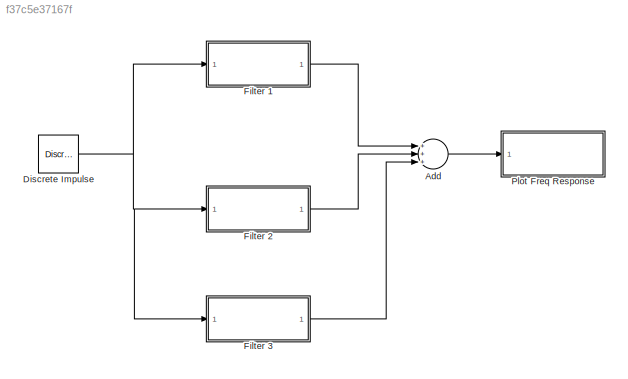
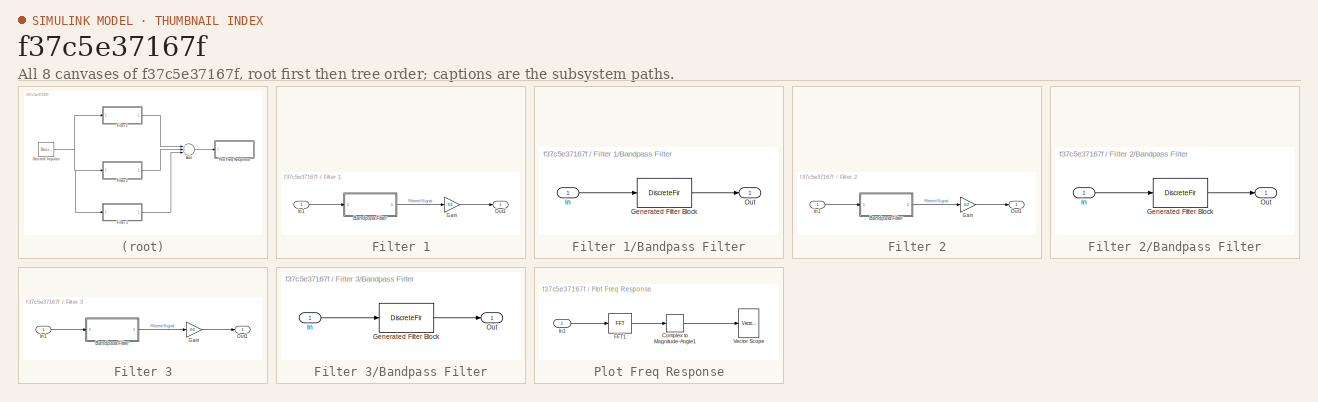
[diagram: thumbnail index - all 8 canvases of the model, root first then tree order]
MODEL slx_f37c5e37167f
KIND model
CONFIG AbsTol = auto
CONFIG EnableMultiTasking = off
CONFIG FixedStep = auto
CONFIG MaxStep = auto
CONFIG MinStep = auto
CONFIG RelTol = 1e-3
CONFIG SampleTimeConstraint = Unconstrained
CONFIG Solver = VariableStepAuto
CONFIG SolverName = VariableStepAuto
CONFIG StartTime = 0.0
CONFIG StopTime = 0.001
BLOCK [Sum] Add
  InputSameDT = off
  Inputs = +++
  OutDataTypeStr = Inherit: Inherit via internal rule
  Ports = [3, 1]
  SaturateOnIntegerOverflow = off
BLOCK [Reference] Discrete Impulse  REF=dspsrcs4/Discrete 
Impulse
  Ports = [0, 1]
  SourceBlock = dspsrcs4/Discrete \nImpulse
  SourceProductBaseCode = DS
  SourceProductName = DSP System Toolbox
  SourceType = Discrete Impulse
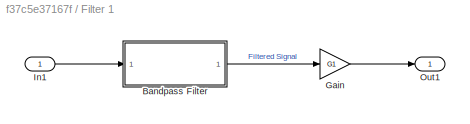
BLOCK [SubSystem] Filter 1
  Ports = [1, 1]
  RequestExecContextInheritance = off
BLOCK [SubSystem] Filter 1/Bandpass Filter
  CopyFcn = fdesignblkfcn(gcbh, {'CopyFcn'});
  DialogController = fdesignblkfcn
  InitFcn = fdesignblkfcn(gcbh, {'InitFcn'});
  Ports = [1, 1]
  RequestExecContextInheritance = off
  UserDataPersistent = on
BLOCK [DiscreteFir] Filter 1/Bandpass Filter/Generated Filter Block
  Coefficients = [-0.0272211933376752917 0.00747037782767970629 0.00758046747530419576 0.00502531178050724323 -0.00105716773934880909 -0.00820374890345216407 -0.0123468618858505741 -0.0112853080382938759 -0.00683744843295390481 -0.00357111834094136008 -0.00493040174227392033 -0.0100804606746067831 -0.0144085311917474569 -0.0135011118497057429 -0.00730334214219387559 -0.000629601963681072907 0.000753708053869889955...<+1909ch>
  InputPortMap = u0
  InputProcessing = Columns as channels (frame based)
  OutputPortMap = o0
  Ports = [1, 1]
  Tag = BlockMethodSubSystem
BLOCK [Inport] Filter 1/Bandpass Filter/In
  IconDisplay = Port number
BLOCK [Outport] Filter 1/Bandpass Filter/Out
  IconDisplay = Port number
BLOCK [Gain] Filter 1/Gain
  Gain = G1
  OutDataTypeStr = Inherit: Inherit via internal rule
  ParamDataTypeStr = Inherit: Inherit via internal rule
  SaturateOnIntegerOverflow = off
BLOCK [Inport] Filter 1/In1
  IconDisplay = Port number
BLOCK [Outport] Filter 1/Out1
  IconDisplay = Port number
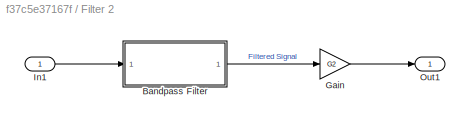
BLOCK [SubSystem] Filter 2
  Ports = [1, 1]
  RequestExecContextInheritance = off
BLOCK [SubSystem] Filter 2/Bandpass Filter
  CopyFcn = fdesignblkfcn(gcbh, {'CopyFcn'});
  DialogController = fdesignblkfcn
  InitFcn = fdesignblkfcn(gcbh, {'InitFcn'});
  Ports = [1, 1]
  RequestExecContextInheritance = off
  UserDataPersistent = on
BLOCK [DiscreteFir] Filter 2/Bandpass Filter/Generated Filter Block
  Coefficients = [-0.0212255444202615051 0.0112000722967074452 -4.29661104741506218e-05 0.00551978314579357979 0.0196380469736699634 0.0129264684457958776 -0.00898714195741865708 -0.00892792220318005918 0.00770129826029877437 0.00724574126994991484 5.51444456542880419e-05 0.00642983600993750522 0.00572861148750505866 -0.00803256920355679277 -0.0072564528540942563 0.00264181853460588407 0.000168403804015946642 0.00...<+1924ch>
  InputPortMap = u0
  InputProcessing = Columns as channels (frame based)
  OutputPortMap = o0
  Ports = [1, 1]
  Tag = BlockMethodSubSystem
BLOCK [Inport] Filter 2/Bandpass Filter/In
  IconDisplay = Port number
BLOCK [Outport] Filter 2/Bandpass Filter/Out
  IconDisplay = Port number
BLOCK [Gain] Filter 2/Gain
  Gain = G2
  OutDataTypeStr = Inherit: Inherit via internal rule
  ParamDataTypeStr = Inherit: Inherit via internal rule
  SaturateOnIntegerOverflow = off
BLOCK [Inport] Filter 2/In1
  IconDisplay = Port number
BLOCK [Outport] Filter 2/Out1
  IconDisplay = Port number
BLOCK [SubSystem] Filter 3
  Ports = [1, 1]
  RequestExecContextInheritance = off
BLOCK [SubSystem] Filter 3/Bandpass Filter
  CopyFcn = fdesignblkfcn(gcbh, {'CopyFcn'});
  DialogController = fdesignblkfcn
  InitFcn = fdesignblkfcn(gcbh, {'InitFcn'});
  Ports = [1, 1]
  RequestExecContextInheritance = off
  UserDataPersistent = on
BLOCK [DiscreteFir] Filter 3/Bandpass Filter/Generated Filter Block
  Coefficients = [-0.0232141398287112714 -0.0081257965287022272 -0.00477598015404239427 0.0119566859293964173 -0.00629511988277732439 -0.00842056012829128613 0.0178309377827628769 -0.0122905536115882966 -0.000697907189023616419 0.00605457699966683357 -0.00125641501846554082 -0.00189218762715576247 -0.00330119899952455468 0.00765673423586806651 -0.00106470465742492123 -0.0101703011096222293 0.011943254487230142 -0....<+1962ch>
  InputPortMap = u0
  InputProcessing = Columns as channels (frame based)
  OutputPortMap = o0
  Ports = [1, 1]
  Tag = BlockMethodSubSystem
BLOCK [Inport] Filter 3/Bandpass Filter/In
  IconDisplay = Port number
BLOCK [Outport] Filter 3/Bandpass Filter/Out
  IconDisplay = Port number
BLOCK [Gain] Filter 3/Gain
  Gain = G3
  OutDataTypeStr = Inherit: Inherit via internal rule
  ParamDataTypeStr = Inherit: Inherit via internal rule
  SaturateOnIntegerOverflow = off
BLOCK [Inport] Filter 3/In1
  IconDisplay = Port number
BLOCK [Outport] Filter 3/Out1
  IconDisplay = Port number
BLOCK [SubSystem] Plot Freq Response
  Ports = [1]
  RequestExecContextInheritance = off
BLOCK [ComplexToMagnitudeAngle] Plot Freq Response/Complex to Magnitude-Angle1
  Output = Magnitude
  Ports = [1, 1]
BLOCK [Reference] Plot Freq Response/FFT1  REF=dspxfrm3/FFT
  Ports = [1, 1]
  SourceBlock = dspxfrm3/FFT
  SourceProductBaseCode = DS
  SourceProductName = DSP System Toolbox
  SourceType = FFT
BLOCK [Inport] Plot Freq Response/In1
  IconDisplay = Port number
BLOCK [Reference] Plot Freq Response/Vector Scope  REF=dspobslib/Vector
Scope
  Ports = [1]
  SourceBlock = dspobslib/Vector\nScope
  SourceProductBaseCode = DS
  SourceProductName = DSP System Toolbox
  SourceType = Vector Scope
LINE Add:1 -> Plot Freq Response:1
NET Discrete Impulse:1 -> Filter 1:1, Filter 2:1, Filter 3:1
LINE Filter 1/Bandpass Filter:1 -> Filter 1/Gain:1
LINE Filter 1/Gain:1 -> Filter 1/Out1:1
LINE Filter 1/In1:1 -> Filter 1/Bandpass Filter:1
LINE Filter 1:1 -> Add:1
LINE Filter 2/Bandpass Filter:1 -> Filter 2/Gain:1
LINE Filter 2/Gain:1 -> Filter 2/Out1:1
LINE Filter 2/In1:1 -> Filter 2/Bandpass Filter:1
LINE Filter 2:1 -> Add:2
LINE Filter 3/Bandpass Filter:1 -> Filter 3/Gain:1
LINE Filter 3/Gain:1 -> Filter 3/Out1:1
LINE Filter 3/In1:1 -> Filter 3/Bandpass Filter:1
LINE Filter 3:1 -> Add:3
LINE Plot Freq Response/Complex to Magnitude-Angle1:1 -> Plot Freq Response/Vector Scope:1
LINE Plot Freq Response/FFT1:1 -> Plot Freq Response/Complex to Magnitude-Angle1:1
LINE Plot Freq Response/In1:1 -> Plot Freq Response/FFT1:1
note: NET lines group one-source signal fan-out (src -> all destinations, sorted); 1:1 wires keep LINE
